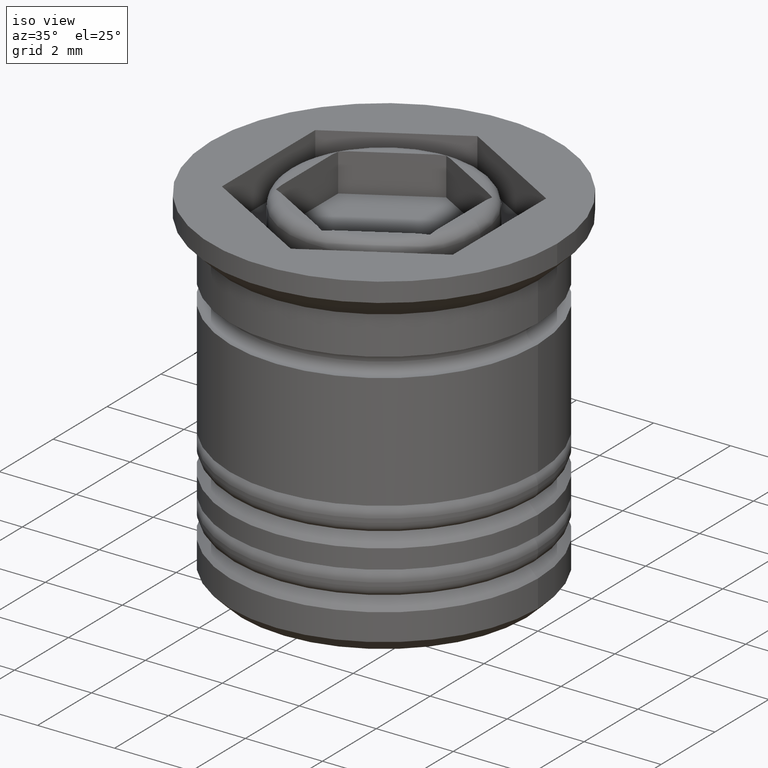
[diagram: clean part render]
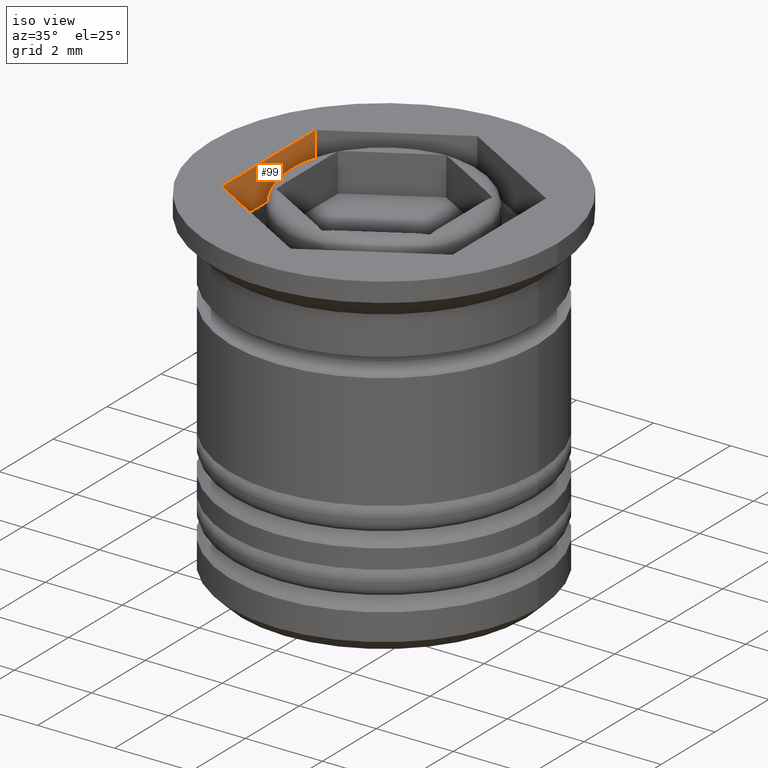
[diagram: same view with one face highlighted and labeled with its STEP entity id]
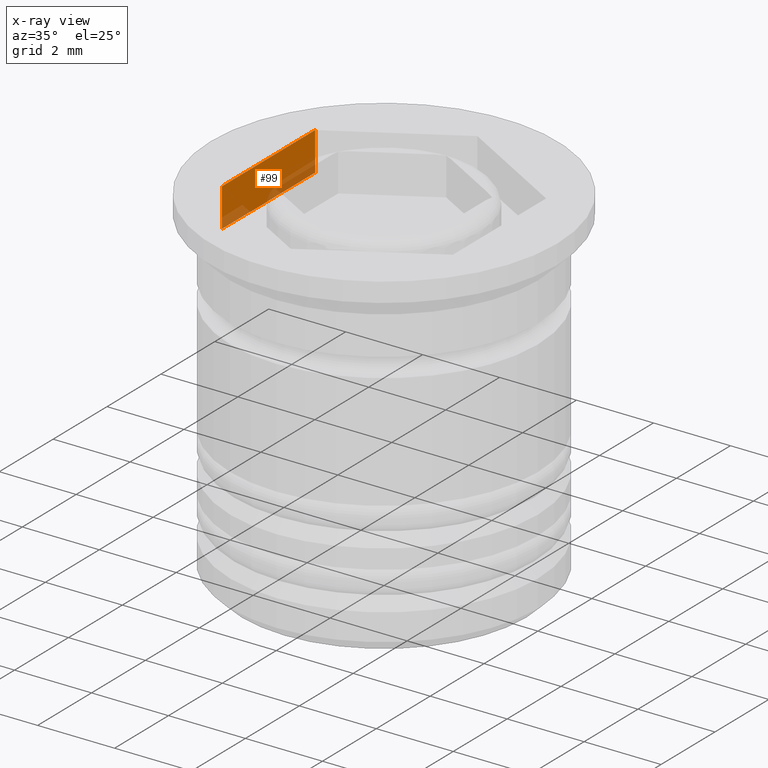
[diagram: x-ray of the same camera — body ghosted, the highlighted face saturated]
A machine part, iso view. The second image highlights one B-rep face of the part: STEP entity #99.
The next image is the same camera in x-ray: the body ghosted, the highlighted face saturated — about 22% of this face is hidden behind the body in this view.
In plain terms, the highlighted planar face has unit normal (-1, 0, -0).
Its self-contained STEP definition (entity closure, byte-faithful):
#74 = EDGE_CURVE ( 'NONE', #1581, #1463, #254, .T. ) ;
#99 = ADVANCED_FACE ( 'NONE', ( #1498 ), #1658, .F. ) ;
#146 = CARTESIAN_POINT ( 'NONE',  ( -3.000000000000000000, 1.732050807568876083, -1.000000000000000000 ) ) ;
#203 = EDGE_CURVE ( 'NONE', #1538, #1581, #1904, .T. ) ;
#254 = LINE ( 'NONE', #1367, #1798 ) ;
#338 = DIRECTION ( 'NONE',  ( -0.000000000000000000, -0.000000000000000000, 1.000000000000000000 ) ) ;
#341 = ORIENTED_EDGE ( 'NONE', *, *, #203, .T. ) ;
#439 = VERTEX_POINT ( 'NONE', #1618 ) ;
#476 = ORIENTED_EDGE ( 'NONE', *, *, #1225, .F. ) ;
#491 = AXIS2_PLACEMENT_3D ( 'NONE', #753, #1357, #1542 ) ;
#561 = CARTESIAN_POINT ( 'NONE',  ( -3.000000000000000000, 1.732050807568876083, -1.000000000000000000 ) ) ;
#702 = DIRECTION ( 'NONE',  ( 0.000000000000000000, -1.000000000000000000, 0.000000000000000000 ) ) ;
#705 = CARTESIAN_POINT ( 'NONE',  ( -3.000000000000000000, 1.732050807568876083, 0.000000000000000000 ) ) ;
#714 = ORIENTED_EDGE ( 'NONE', *, *, #1948, .F. ) ;
#716 = VECTOR ( 'NONE', #338, 1000.000000000000000 ) ;
#753 = CARTESIAN_POINT ( 'NONE',  ( -3.000000000000000000, 1.732050807568876083, -1.000000000000000000 ) ) ;
#765 = EDGE_LOOP ( 'NONE', ( #1301, #476, #714, #341 ) ) ;
#877 = DIRECTION ( 'NONE',  ( -0.000000000000000000, -0.000000000000000000, 1.000000000000000000 ) ) ;
#898 = LINE ( 'NONE', #2016, #1840 ) ;
#1088 = VECTOR ( 'NONE', #702, 1000.000000000000000 ) ;
#1135 = CARTESIAN_POINT ( 'NONE',  ( -3.000000000000000000, 1.732050807568876083, -1.000000000000000000 ) ) ;
#1225 = EDGE_CURVE ( 'NONE', #439, #1463, #898, .T. ) ;
#1301 = ORIENTED_EDGE ( 'NONE', *, *, #74, .T. ) ;
#1357 = DIRECTION ( 'NONE',  ( -1.000000000000000000, 0.000000000000000000, -0.000000000000000000 ) ) ;
#1367 = CARTESIAN_POINT ( 'NONE',  ( -3.000000000000000000, 1.732050807568876083, 0.000000000000000000 ) ) ;
#1463 = VERTEX_POINT ( 'NONE', #1752 ) ;
#1498 = FACE_OUTER_BOUND ( 'NONE', #765, .T. ) ;
#1538 = VERTEX_POINT ( 'NONE', #1135 ) ;
#1542 = DIRECTION ( 'NONE',  ( -0.000000000000000000, 0.000000000000000000, 1.000000000000000000 ) ) ;
#1581 = VERTEX_POINT ( 'NONE', #705 ) ;
#1618 = CARTESIAN_POINT ( 'NONE',  ( -3.000000000000000000, -1.732050807568877859, -1.000000000000000000 ) ) ;
#1658 = PLANE ( 'NONE',  #491 ) ;
#1697 = DIRECTION ( 'NONE',  ( 0.000000000000000000, -1.000000000000000000, 0.000000000000000000 ) ) ;
#1752 = CARTESIAN_POINT ( 'NONE',  ( -3.000000000000000000, -1.732050807568877859, 0.000000000000000000 ) ) ;
#1798 = VECTOR ( 'NONE', #1697, 1000.000000000000000 ) ;
#1840 = VECTOR ( 'NONE', #877, 1000.000000000000000 ) ;
#1904 = LINE ( 'NONE', #146, #716 ) ;
#1948 = EDGE_CURVE ( 'NONE', #1538, #439, #1956, .T. ) ;
#1956 = LINE ( 'NONE', #561, #1088 ) ;
#2016 = CARTESIAN_POINT ( 'NONE',  ( -3.000000000000000000, -1.732050807568877859, -1.000000000000000000 ) ) ;